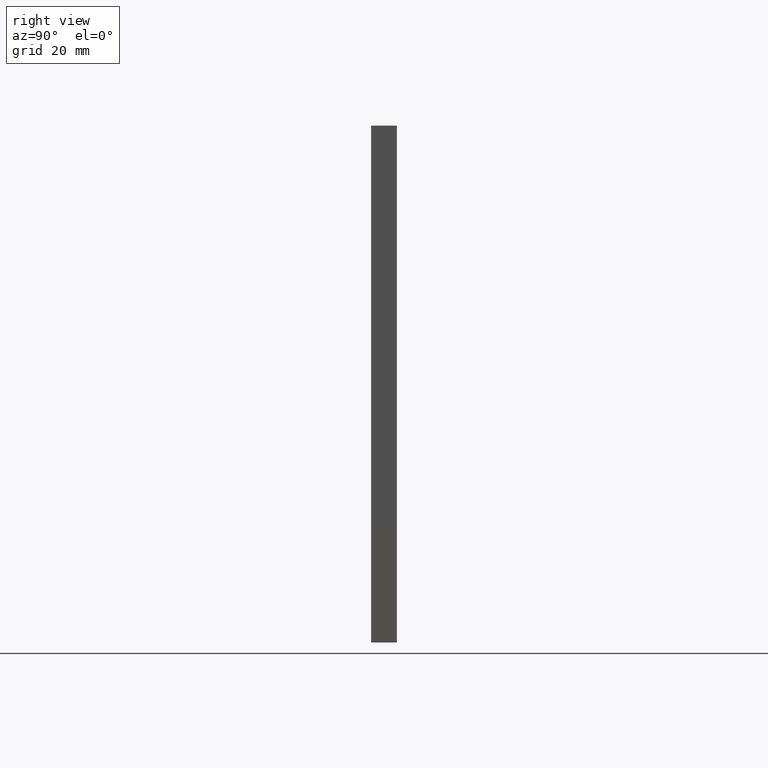
[diagram: clean part render]
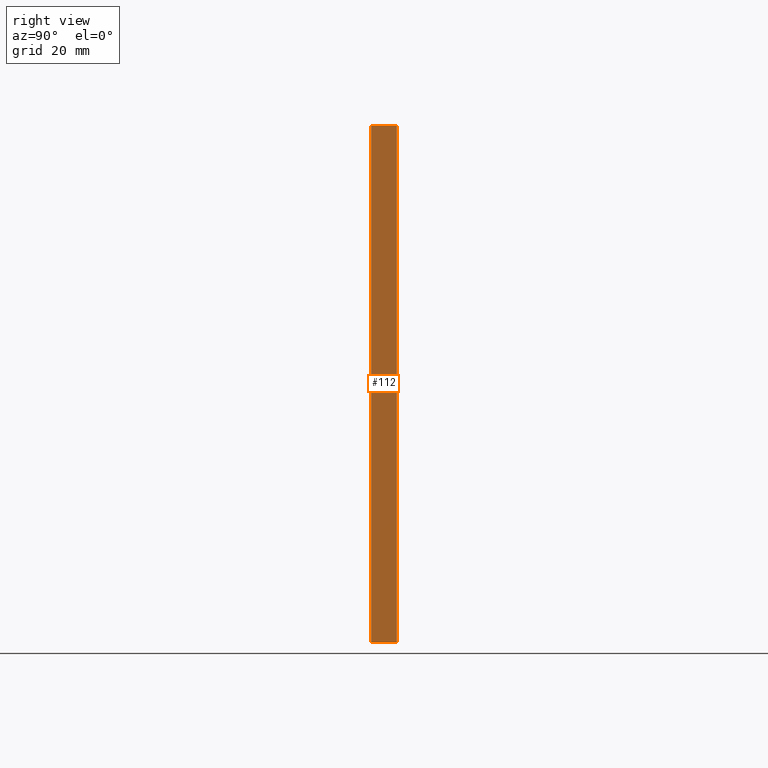
[diagram: same view with one face highlighted and labeled with its STEP entity id]
A machine part, right view. The second image highlights one B-rep face of the part: STEP entity #112.
In plain terms, the highlighted planar face has unit normal (-1, 0, 0).
Its self-contained STEP definition (entity closure, byte-faithful):
#26 = CARTESIAN_POINT ( 'NONE',  ( 49.99999999999999289, -2.500000000000000000, 49.99999999999999289 ) ) ;
#112 = ADVANCED_FACE ( 'NONE', ( #6311 ), #900, .F. ) ;
#573 = VERTEX_POINT ( 'NONE', #4289 ) ;
#844 = DIRECTION ( 'NONE',  ( 2.081668171172168513E-16, 0.000000000000000000, 1.000000000000000000 ) ) ;
#900 = PLANE ( 'NONE',  #5572 ) ;
#965 = CARTESIAN_POINT ( 'NONE',  ( 49.99999999999997158, 2.500000000000000000, -50.00000000000000711 ) ) ;
#2004 = CARTESIAN_POINT ( 'NONE',  ( 49.99999999999997158, -2.500000000000000000, -50.00000000000000711 ) ) ;
#2447 = ORIENTED_EDGE ( 'NONE', *, *, #12581, .T. ) ;
#3748 = DIRECTION ( 'NONE',  ( -0.000000000000000000, -1.000000000000000000, -0.000000000000000000 ) ) ;
#3856 = VERTEX_POINT ( 'NONE', #26 ) ;
#3914 = ORIENTED_EDGE ( 'NONE', *, *, #10445, .F. ) ;
#4018 = VECTOR ( 'NONE', #3748, 1000.000000000000000 ) ;
#4289 = CARTESIAN_POINT ( 'NONE',  ( 49.99999999999999289, 2.500000000000000000, 49.99999999999999289 ) ) ;
#5015 = DIRECTION ( 'NONE',  ( -2.081668171172168513E-16, -0.000000000000000000, -1.000000000000000000 ) ) ;
#5572 = AXIS2_PLACEMENT_3D ( 'NONE', #8869, #16989, #844 ) ;
#6090 = LINE ( 'NONE', #6300, #4018 ) ;
#6300 = CARTESIAN_POINT ( 'NONE',  ( 49.99999999999999289, 2.500000000000000000, 49.99999999999999289 ) ) ;
#6311 = FACE_OUTER_BOUND ( 'NONE', #16247, .T. ) ;
#7720 = VECTOR ( 'NONE', #10891, 1000.000000000000000 ) ;
#7867 = ORIENTED_EDGE ( 'NONE', *, *, #15316, .T. ) ;
#8077 = CARTESIAN_POINT ( 'NONE',  ( 49.99999999999997158, -2.500000000000000000, -50.00000000000000711 ) ) ;
#8381 = VECTOR ( 'NONE', #12535, 1000.000000000000000 ) ;
#8388 = CARTESIAN_POINT ( 'NONE',  ( 49.99999999999997158, 2.500000000000000000, -50.00000000000000711 ) ) ;
#8869 = CARTESIAN_POINT ( 'NONE',  ( 49.99999999999997158, 2.500000000000000000, -50.00000000000000711 ) ) ;
#9075 = VECTOR ( 'NONE', #5015, 1000.000000000000000 ) ;
#9229 = VERTEX_POINT ( 'NONE', #2004 ) ;
#10445 = EDGE_CURVE ( 'NONE', #573, #13378, #10539, .T. ) ;
#10539 = LINE ( 'NONE', #965, #9075 ) ;
#10891 = DIRECTION ( 'NONE',  ( -2.081668171172168513E-16, -0.000000000000000000, -1.000000000000000000 ) ) ;
#11006 = ORIENTED_EDGE ( 'NONE', *, *, #13574, .F. ) ;
#11158 = CARTESIAN_POINT ( 'NONE',  ( 49.99999999999997158, 2.500000000000000000, -50.00000000000000711 ) ) ;
#11512 = LINE ( 'NONE', #8077, #7720 ) ;
#12535 = DIRECTION ( 'NONE',  ( -0.000000000000000000, -1.000000000000000000, -0.000000000000000000 ) ) ;
#12581 = EDGE_CURVE ( 'NONE', #573, #3856, #6090, .T. ) ;
#13378 = VERTEX_POINT ( 'NONE', #11158 ) ;
#13574 = EDGE_CURVE ( 'NONE', #13378, #9229, #15763, .T. ) ;
#15316 = EDGE_CURVE ( 'NONE', #3856, #9229, #11512, .T. ) ;
#15763 = LINE ( 'NONE', #8388, #8381 ) ;
#16247 = EDGE_LOOP ( 'NONE', ( #7867, #11006, #3914, #2447 ) ) ;
#16989 = DIRECTION ( 'NONE',  ( -1.000000000000000000, 0.000000000000000000, 2.081668171172168513E-16 ) ) ;